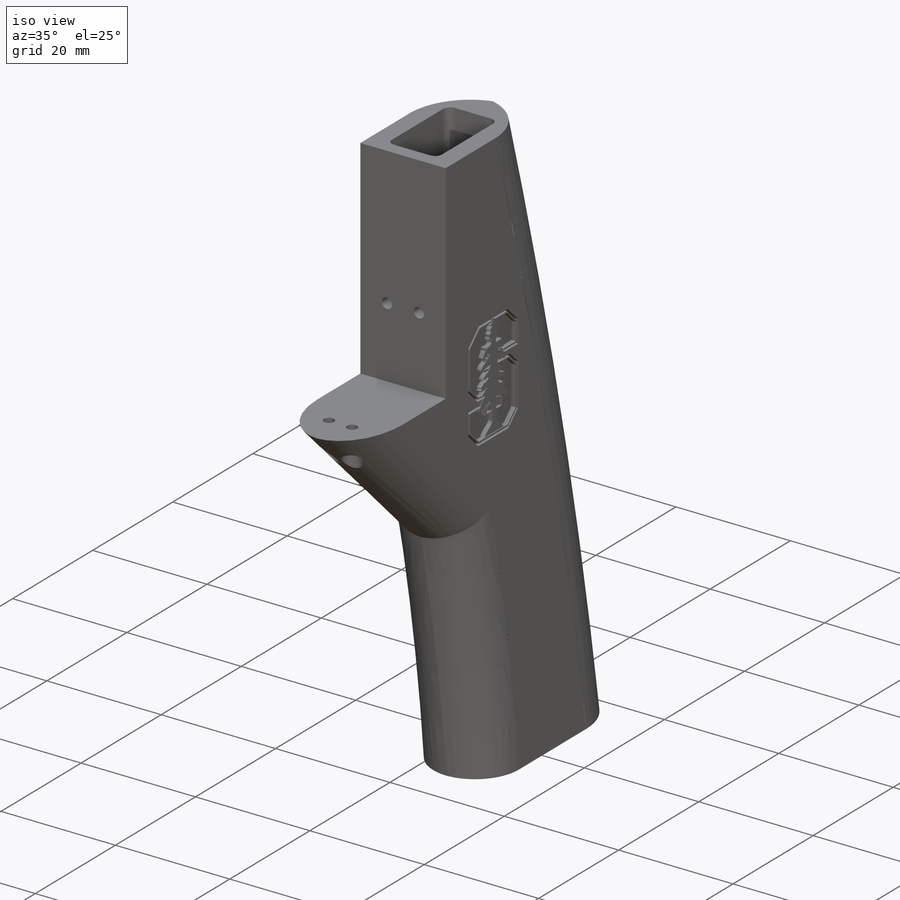
[diagram: iso view]
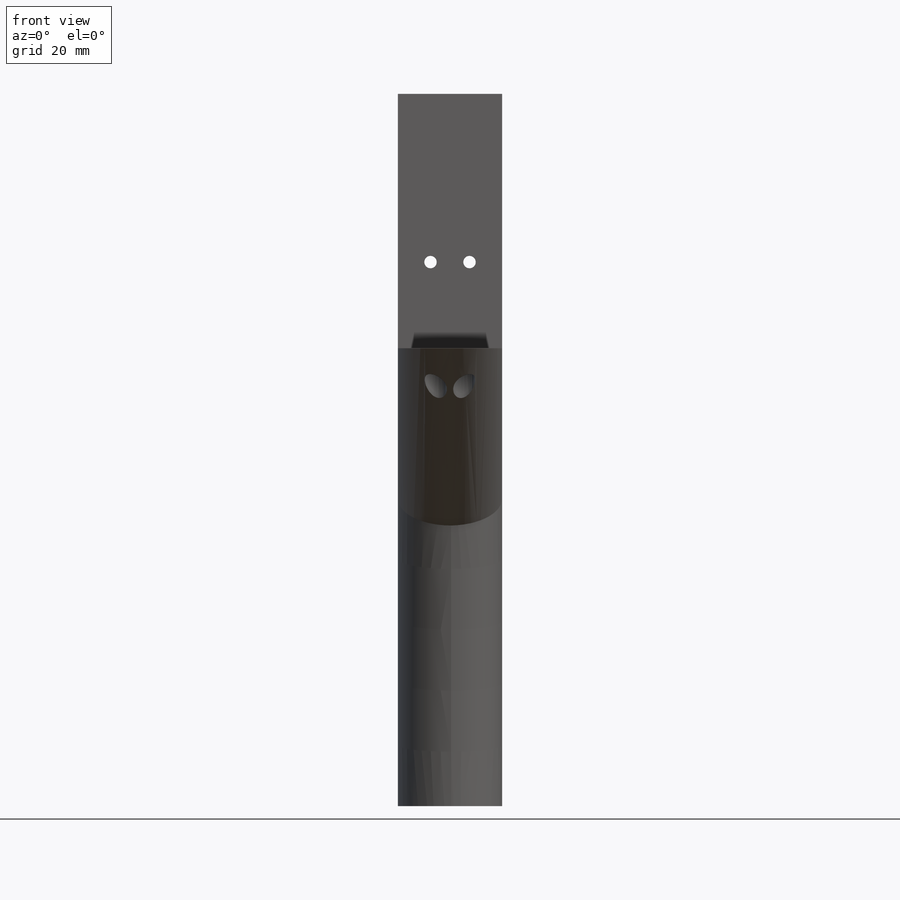
[diagram: front view]
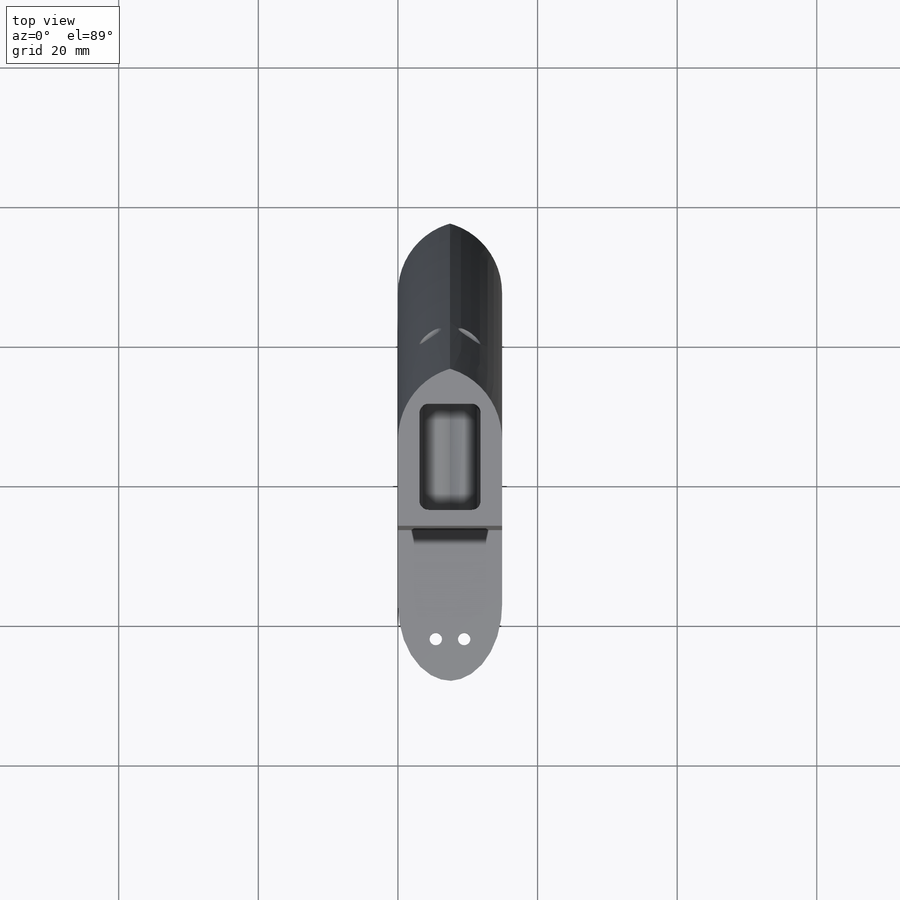
[diagram: top view]
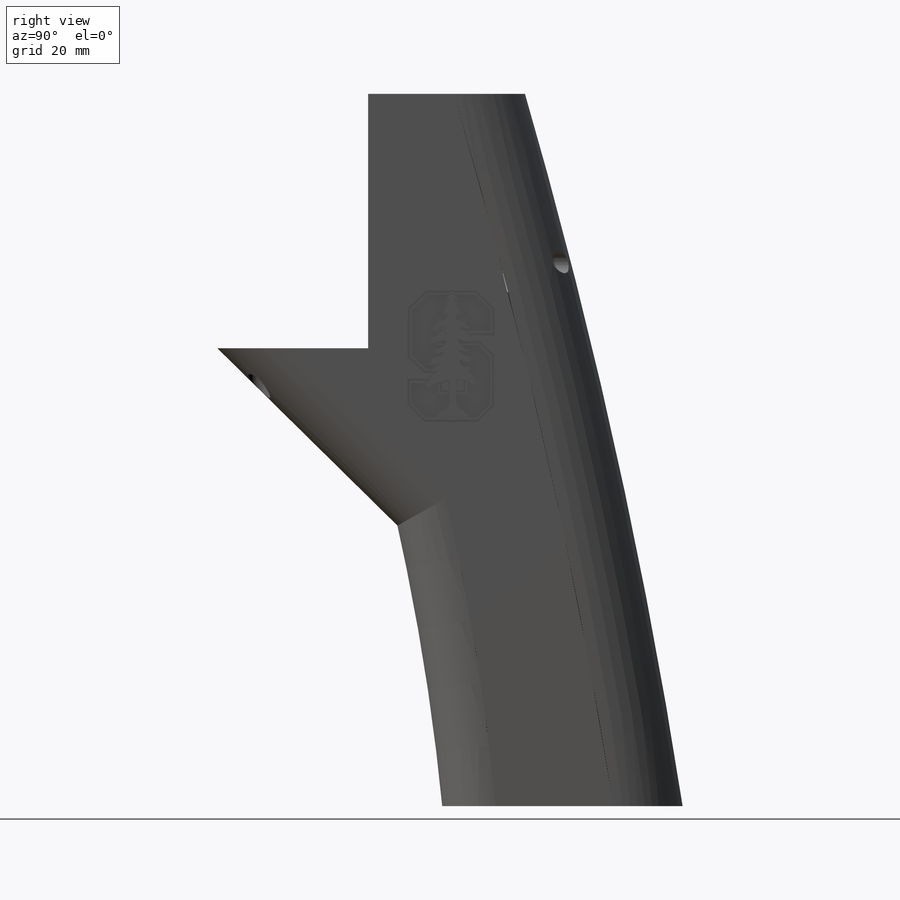
[diagram: right view]
SOLIDWORKS PART (.sldprt)
format: sldprt  version: not decoded by parser v0  size: 946,688 bytes
history: native  units: mm
features: sketch x23, cut_extrude x8, plane x6, fillet x6, extrude x4, material x1, shell x1 (+12 scaffold rows collapsed)
feature tree (61):
  scaffold x12  (default folders/planes/origin — collapsed)
  material  "Material <not specified>"
  sketch  "Sketch1"  dims[D1=88.9mm D2=40.64mm]
  extrude  "Boss-Extrude1"  Depth=14.92mm
  sketch  "3DSketch3"  dims[D1=~23.328872mm D2=~23.299856mm]
  sketch  "Sketch14"  dims[D1=~23.299856mm D2=~8.143283mm]
  cut_extrude  "Cut-Extrude5"  [1 undecoded]
  sketch  "Sketch34"  dims[D1=~13.139846mm D2=25.4mm D3=0.0mm]
  extrude  "Boss-Extrude3"  [1 undecoded]
  sketch  "3DSketch4"
  sketch  "Sketch13"  dims[D1=19.05mm D2=25.4mm D3=~7.745586mm]
  extrude  "Boss-Extrude2"  [1 undecoded]
  plane  "Plane3"
  sketch  "Sketch19"  dims[D1=~10.961805mm]
  sketch  "Sketch20"
  sketch  "3DSketch8"
  plane  "Plane6"
  plane  "Plane7"
  sketch  "Sketch40"
  sketch  "Sketch39"
  sketch  "Sketch41"
  plane  "Plane12"
  sketch  "Sketch44"  dims[D2=~2.267598mm D1=2.794mm]
  cut_extrude  "Cut-Extrude13"  Depth=22.86mm
  sketch  "Sketch45"  dims[D1=3.175mm]
  cut_extrude  "Cut-Extrude14"  Depth=25.908mm
  shell  "Shell3"  Thickness=3.556mm
  fillet  "Fillet1"  Radius=10.16mm
  fillet  "Fillet5"  Radius=7.62mm
  fillet  "Fillet3"  Radius=7.62mm
  fillet  "Fillet2"  Radius=5.08mm
  fillet  "Fillet7"  Radius=7.62mm
  sketch  "Sketch15"  dims[D1=2.54mm]
  cut_extrude  "Cut-Extrude6"  [1 undecoded]
  sketch  "Sketch29"
  sketch  "Sketch30"
  plane  "Plane9"
  plane  "Plane10"
  sketch  "Sketch32"  dims[c1.D3=1.778mm c1.D4=1.778mm c1.D1=2.032mm c1.D2=2.032mm c1.D5=~15.590985mm c2.D1=2.032mm c2.D2=2.032mm]
  cut_extrude  "Cut-Extrude9"  [1 undecoded]
  sketch  "Sketch33"  dims[D1=3.175mm D2=3.175mm]
  cut_extrude  "Cut-Extrude10"  Depth=8.128mm
  sketch  "Sketch46"
  fillet  "Fillet8"  Radius=1.651mm
  sketch  "Sketch48"  dims[D2=1.27mm D1=15.24mm]
  cut_extrude  "Cut-Extrude15"  Depth=17.78mm
  sketch  "Sketch49"  dims[D1=5.08mm]
  extrude  "Boss-Extrude4"  [1 undecoded]
  sketch  "Sketch50"
  cut_extrude  "Cut-Extrude16"  Depth=0.762mm
decode coverage: 26 of 42 modeling features carry decoded parameters
note: ~ marks probable driven/reference dimensions
note: 6 parameter values undecoded
summary: no parameter record found for 6 features
note: suppression state not decoded; provenance and decode notes live in map.json
